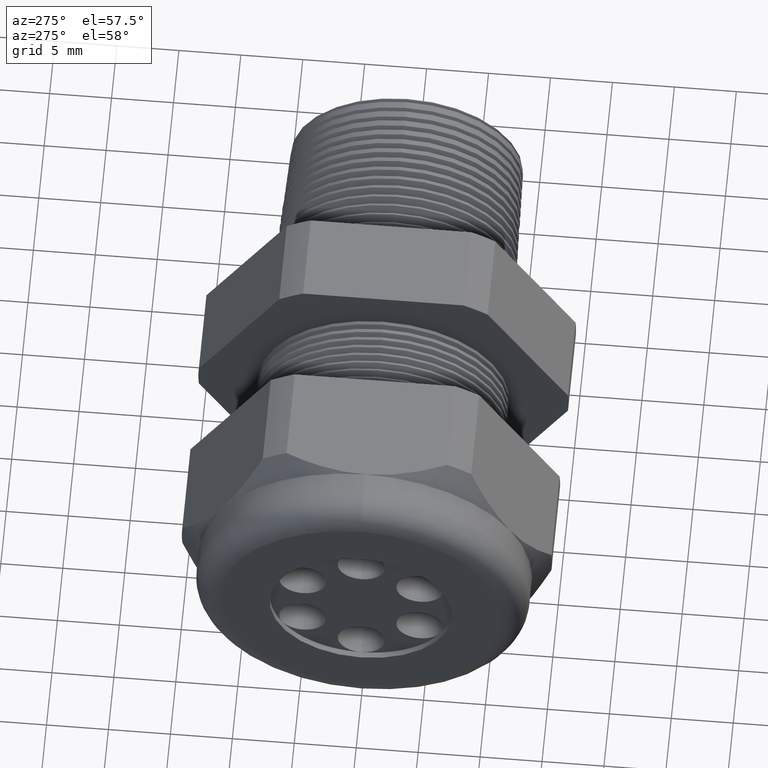
[diagram: clean part render]
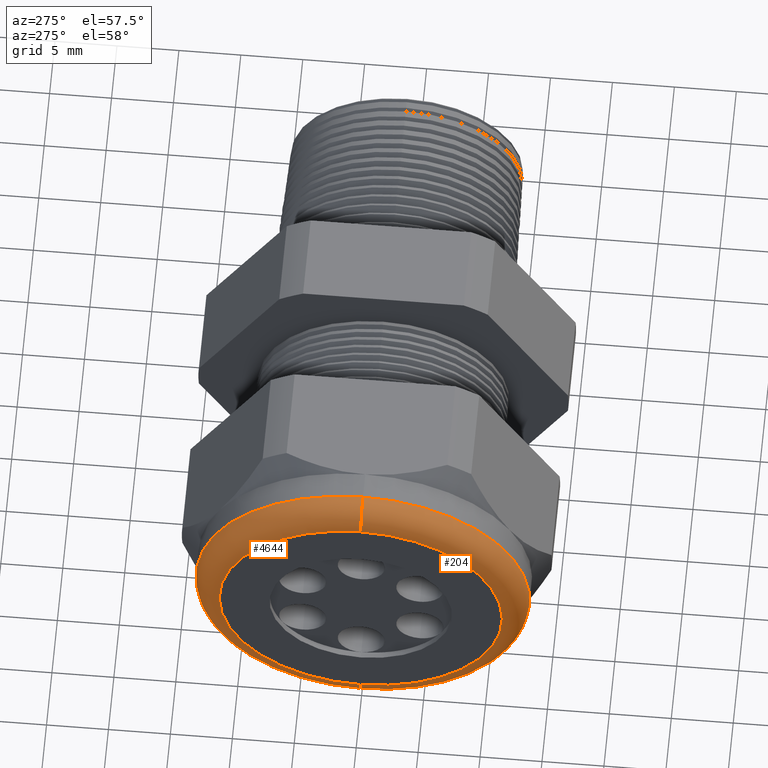
[diagram: same view with one multi-face feature highlighted, each face labeled with its STEP entity id]
A machine part, auxiliary view. The highlighted faces form ONE feature: a constant-radius fillet chain: 2 tangent blend faces with common blend radius 2.032 mm. The faces share edges in the B-rep.
Their STEP definitions:
[1] entity #4644 (Torus):
#3600 = AXIS2_PLACEMENT_3D ( 'NONE', #3607, #3666, #3665 ) ;
#3601 = CIRCLE ( 'NONE', #3600, 0.07999999999999996000 ) ;
#3602 = DIRECTION ( 'NONE',  ( 0.0000000000000000000, 0.0000000000000000000, 1.000000000000000000 ) ) ;
#3603 = DIRECTION ( 'NONE',  ( 1.000000000000000000, 0.0000000000000000000, 0.0000000000000000000 ) ) ;
#3604 = CARTESIAN_POINT ( 'NONE',  ( -1.330000000000000100, 0.0000000000000000000, 0.0000000000000000000 ) ) ;
#3605 = AXIS2_PLACEMENT_3D ( 'NONE', #3604, #3603, #3602 ) ;
#3606 = CIRCLE ( 'NONE', #3605, 0.5299999999999999200 ) ;
#3607 = CARTESIAN_POINT ( 'NONE',  ( -1.330000000000000100, 5.510910596163088900E-017, -0.4499999999999999600 ) ) ;
#3608 = CARTESIAN_POINT ( 'NONE',  ( -1.330000000000000100, 6.490628035480971200E-017, 0.5299999999999999200 ) ) ;
#3609 = CARTESIAN_POINT ( 'NONE',  ( -1.409999999999999900, 6.000769315822029800E-017, -0.4499999999999999600 ) ) ;
#3610 = CARTESIAN_POINT ( 'NONE',  ( -1.330000000000000100, 0.0000000000000000000, -0.5299999999999999200 ) ) ;
#3658 = DIRECTION ( 'NONE',  ( 0.0000000000000000000, 0.0000000000000000000, 1.000000000000000000 ) ) ;
#3659 = DIRECTION ( 'NONE',  ( -1.000000000000000000, 0.0000000000000000000, 0.0000000000000000000 ) ) ;
#3660 = CARTESIAN_POINT ( 'NONE',  ( -1.330000000000000100, 0.0000000000000000000, 0.0000000000000000000 ) ) ;
#3661 = AXIS2_PLACEMENT_3D ( 'NONE', #3660, #3659, #3658 ) ;
#3663 = TOROIDAL_SURFACE ( 'NONE', #3661, 0.4499999999999999600, 0.08000000000000000200 ) ;
#3664 = FACE_OUTER_BOUND ( 'NONE', #4649, .T. ) ;
#3665 = DIRECTION ( 'NONE',  ( 0.0000000000000000000, -1.224646799147353900E-016, 1.000000000000000000 ) ) ;
#3666 = DIRECTION ( 'NONE',  ( 0.0000000000000000000, 1.000000000000000000, 1.224646799147353200E-016 ) ) ;
#3705 = DIRECTION ( 'NONE',  ( 0.0000000000000000000, 0.0000000000000000000, 1.000000000000000000 ) ) ;
#3707 = DIRECTION ( 'NONE',  ( -1.000000000000000000, 0.0000000000000000000, 0.0000000000000000000 ) ) ;
#3708 = CARTESIAN_POINT ( 'NONE',  ( -1.409999999999999900, 0.0000000000000000000, 0.0000000000000000000 ) ) ;
#3709 = AXIS2_PLACEMENT_3D ( 'NONE', #3708, #3707, #3705 ) ;
#3710 = CIRCLE ( 'NONE', #3709, 0.4499999999999999600 ) ;
#3712 = CARTESIAN_POINT ( 'NONE',  ( -1.409999999999999900, 0.0000000000000000000, 0.4499999999999999600 ) ) ;
#3713 = DIRECTION ( 'NONE',  ( 0.0000000000000000000, 0.0000000000000000000, -1.000000000000000000 ) ) ;
#3714 = DIRECTION ( 'NONE',  ( 0.0000000000000000000, -1.000000000000000000, 0.0000000000000000000 ) ) ;
#3715 = AXIS2_PLACEMENT_3D ( 'NONE', #3722, #3714, #3713 ) ;
#3716 = CIRCLE ( 'NONE', #3715, 0.07999999999999996000 ) ;
#3722 = CARTESIAN_POINT ( 'NONE',  ( -1.330000000000000100, 0.0000000000000000000, 0.4499999999999999600 ) ) ;
#4629 = VERTEX_POINT ( 'NONE', #3610 ) ;
#4633 = VERTEX_POINT ( 'NONE', #3609 ) ;
#4634 = VERTEX_POINT ( 'NONE', #3608 ) ;
#4638 = ORIENTED_EDGE ( 'NONE', *, *, #4643, .T. ) ;
#4640 = EDGE_CURVE ( 'NONE', #4629, #4634, #3606, .T. ) ;
#4643 = EDGE_CURVE ( 'NONE', #4629, #4633, #3601, .T. ) ;
#4644 = ADVANCED_FACE ( 'NONE', ( #3664 ), #3663, .T. ) ;
#4648 = ORIENTED_EDGE ( 'NONE', *, *, #4640, .F. ) ;
#4649 = EDGE_LOOP ( 'NONE', ( #4648, #4638, #4695, #4692 ) ) ;
#4691 = EDGE_CURVE ( 'NONE', #4634, #4693, #3716, .T. ) ;
#4692 = ORIENTED_EDGE ( 'NONE', *, *, #4691, .F. ) ;
#4693 = VERTEX_POINT ( 'NONE', #3712 ) ;
#4694 = EDGE_CURVE ( 'NONE', #4693, #4633, #3710, .T. ) ;
#4695 = ORIENTED_EDGE ( 'NONE', *, *, #4694, .F. ) ;
[2] entity #204 (Torus):
#203 = EDGE_LOOP ( 'NONE', ( #264, #263, #266, #260 ) ) ;
#204 = ADVANCED_FACE ( 'NONE', ( #1019 ), #1018, .T. ) ;
#260 = ORIENTED_EDGE ( 'NONE', *, *, #4380, .F. ) ;
#263 = ORIENTED_EDGE ( 'NONE', *, *, #4055, .F. ) ;
#264 = ORIENTED_EDGE ( 'NONE', *, *, #4643, .F. ) ;
#266 = ORIENTED_EDGE ( 'NONE', *, *, #4691, .T. ) ;
#1005 = DIRECTION ( 'NONE',  ( 0.0000000000000000000, 0.0000000000000000000, 1.000000000000000000 ) ) ;
#1006 = DIRECTION ( 'NONE',  ( -1.000000000000000000, 0.0000000000000000000, 0.0000000000000000000 ) ) ;
#1015 = AXIS2_PLACEMENT_3D ( 'NONE', #1016, #1006, #1005 ) ;
#1016 = CARTESIAN_POINT ( 'NONE',  ( -1.330000000000000100, 0.0000000000000000000, 0.0000000000000000000 ) ) ;
#1018 = TOROIDAL_SURFACE ( 'NONE', #1015, 0.4499999999999999600, 0.08000000000000000200 ) ;
#1019 = FACE_OUTER_BOUND ( 'NONE', #203, .T. ) ;
#2537 = DIRECTION ( 'NONE',  ( 0.0000000000000000000, 0.0000000000000000000, 1.000000000000000000 ) ) ;
#2538 = DIRECTION ( 'NONE',  ( 1.000000000000000000, 0.0000000000000000000, 0.0000000000000000000 ) ) ;
#2539 = CARTESIAN_POINT ( 'NONE',  ( -1.330000000000000100, 0.0000000000000000000, 0.0000000000000000000 ) ) ;
#2540 = AXIS2_PLACEMENT_3D ( 'NONE', #2539, #2538, #2537 ) ;
#2541 = CIRCLE ( 'NONE', #2540, 0.5299999999999999200 ) ;
#3187 = DIRECTION ( 'NONE',  ( 0.0000000000000000000, 0.0000000000000000000, 1.000000000000000000 ) ) ;
#3188 = DIRECTION ( 'NONE',  ( -1.000000000000000000, 0.0000000000000000000, 0.0000000000000000000 ) ) ;
#3189 = CARTESIAN_POINT ( 'NONE',  ( -1.409999999999999900, 0.0000000000000000000, 0.0000000000000000000 ) ) ;
#3190 = AXIS2_PLACEMENT_3D ( 'NONE', #3189, #3188, #3187 ) ;
#3191 = CIRCLE ( 'NONE', #3190, 0.4499999999999999600 ) ;
#3600 = AXIS2_PLACEMENT_3D ( 'NONE', #3607, #3666, #3665 ) ;
#3601 = CIRCLE ( 'NONE', #3600, 0.07999999999999996000 ) ;
#3607 = CARTESIAN_POINT ( 'NONE',  ( -1.330000000000000100, 5.510910596163088900E-017, -0.4499999999999999600 ) ) ;
#3608 = CARTESIAN_POINT ( 'NONE',  ( -1.330000000000000100, 6.490628035480971200E-017, 0.5299999999999999200 ) ) ;
#3609 = CARTESIAN_POINT ( 'NONE',  ( -1.409999999999999900, 6.000769315822029800E-017, -0.4499999999999999600 ) ) ;
#3610 = CARTESIAN_POINT ( 'NONE',  ( -1.330000000000000100, 0.0000000000000000000, -0.5299999999999999200 ) ) ;
#3665 = DIRECTION ( 'NONE',  ( 0.0000000000000000000, -1.224646799147353900E-016, 1.000000000000000000 ) ) ;
#3666 = DIRECTION ( 'NONE',  ( 0.0000000000000000000, 1.000000000000000000, 1.224646799147353200E-016 ) ) ;
#3712 = CARTESIAN_POINT ( 'NONE',  ( -1.409999999999999900, 0.0000000000000000000, 0.4499999999999999600 ) ) ;
#3713 = DIRECTION ( 'NONE',  ( 0.0000000000000000000, 0.0000000000000000000, -1.000000000000000000 ) ) ;
#3714 = DIRECTION ( 'NONE',  ( 0.0000000000000000000, -1.000000000000000000, 0.0000000000000000000 ) ) ;
#3715 = AXIS2_PLACEMENT_3D ( 'NONE', #3722, #3714, #3713 ) ;
#3716 = CIRCLE ( 'NONE', #3715, 0.07999999999999996000 ) ;
#3722 = CARTESIAN_POINT ( 'NONE',  ( -1.330000000000000100, 0.0000000000000000000, 0.4499999999999999600 ) ) ;
#4055 = EDGE_CURVE ( 'NONE', #4634, #4629, #2541, .T. ) ;
#4380 = EDGE_CURVE ( 'NONE', #4633, #4693, #3191, .T. ) ;
#4629 = VERTEX_POINT ( 'NONE', #3610 ) ;
#4633 = VERTEX_POINT ( 'NONE', #3609 ) ;
#4634 = VERTEX_POINT ( 'NONE', #3608 ) ;
#4643 = EDGE_CURVE ( 'NONE', #4629, #4633, #3601, .T. ) ;
#4691 = EDGE_CURVE ( 'NONE', #4634, #4693, #3716, .T. ) ;
#4693 = VERTEX_POINT ( 'NONE', #3712 ) ;